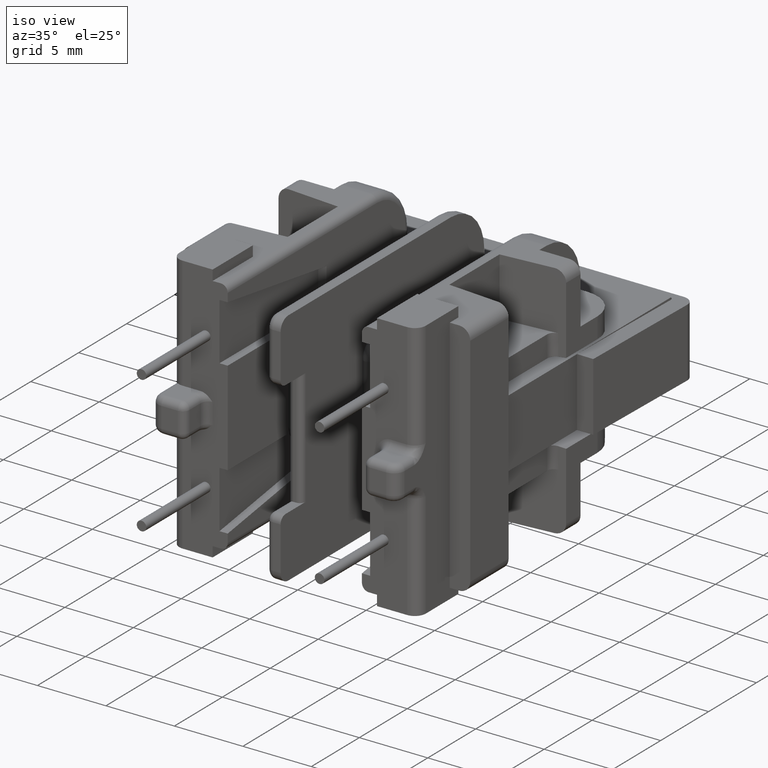
[diagram: clean part render]
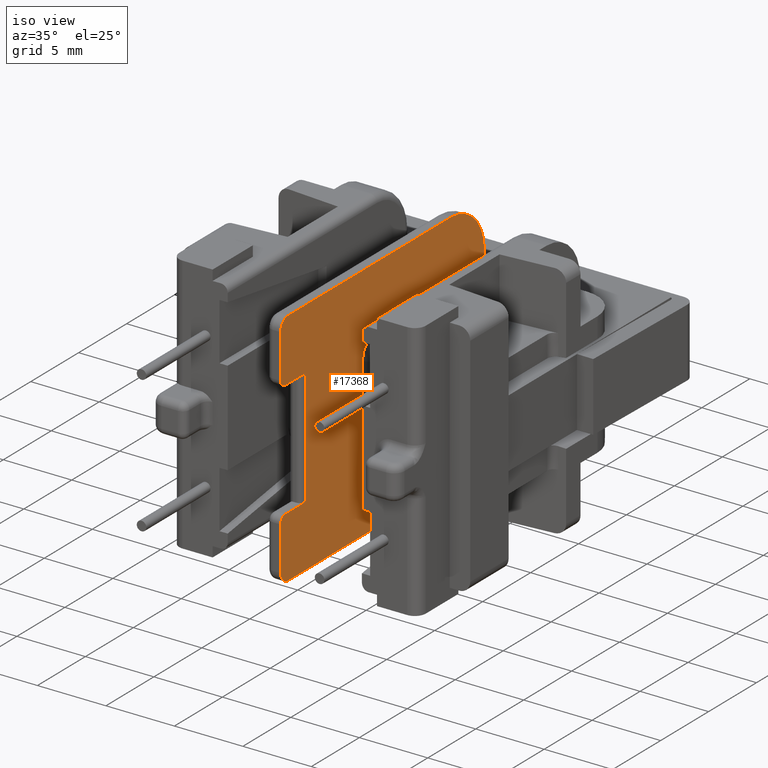
[diagram: same view with one face highlighted and labeled with its STEP entity id]
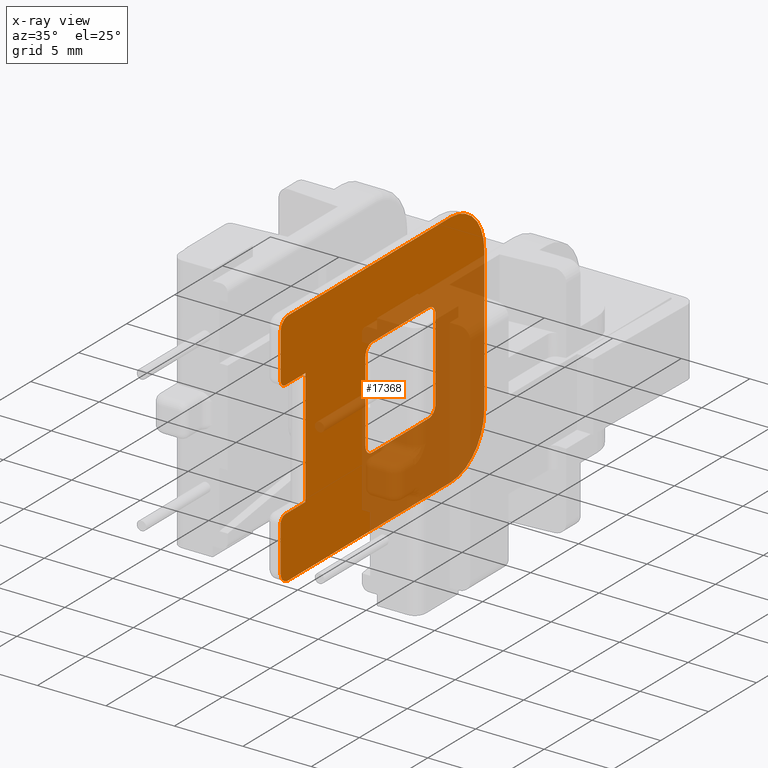
[diagram: x-ray of the same camera — body ghosted, the highlighted face saturated]
A machine part, iso view. The second image highlights one B-rep face of the part: STEP entity #17368.
The next image is the same camera in x-ray: the body ghosted, the highlighted face saturated — about 42% of this face is hidden behind the body in this view.
In plain terms, the highlighted planar face has unit normal (-1, -0, 0).
Its self-contained STEP definition (entity closure, byte-faithful):
#122 = AXIS2_PLACEMENT_3D ( 'NONE', #20296, #19104, #18491 ) ;
#171 = CARTESIAN_POINT ( 'NONE',  ( 0.5000000000000031086, -12.50000000000000000, 8.750000000000000000 ) ) ;
#184 = LINE ( 'NONE', #21788, #19378 ) ;
#272 = ORIENTED_EDGE ( 'NONE', *, *, #12640, .T. ) ;
#327 = AXIS2_PLACEMENT_3D ( 'NONE', #7729, #15359, #16993 ) ;
#409 = CIRCLE ( 'NONE', #10129, 0.7000000000000000666 ) ;
#552 = CARTESIAN_POINT ( 'NONE',  ( 0.5000000000000006661, 8.750000000000000000, -5.250000000000000888 ) ) ;
#621 = AXIS2_PLACEMENT_3D ( 'NONE', #12297, #3234, #19556 ) ;
#696 = EDGE_CURVE ( 'NONE', #22069, #9322, #409, .T. ) ;
#975 = FACE_BOUND ( 'NONE', #6990, .T. ) ;
#1259 = DIRECTION ( 'NONE',  ( 2.168404344971006896E-16, -1.000000000000000000, 0.0000000000000000000 ) ) ;
#1398 = VERTEX_POINT ( 'NONE', #2088 ) ;
#1412 = CARTESIAN_POINT ( 'NONE',  ( 0.5000000000000031086, -12.00000000000000000, -4.750000000000007994 ) ) ;
#1442 = DIRECTION ( 'NONE',  ( 1.548860246407863336E-16, -1.000000000000000000, 0.0000000000000000000 ) ) ;
#1696 = CARTESIAN_POINT ( 'NONE',  ( 0.5000000000000006661, 8.750000000000000000, 8.750000000000000000 ) ) ;
#1922 = CIRCLE ( 'NONE', #122, 0.8000000000000003775 ) ;
#2041 = EDGE_CURVE ( 'NONE', #5717, #20792, #9850, .T. ) ;
#2088 = CARTESIAN_POINT ( 'NONE',  ( 0.5000000000000028866, -9.899999999999998579, -4.250000000000007105 ) ) ;
#2122 = VERTEX_POINT ( 'NONE', #8492 ) ;
#2289 = VERTEX_POINT ( 'NONE', #3399 ) ;
#2333 = CARTESIAN_POINT ( 'NONE',  ( 0.5000000000000031086, -12.50000000000000000, 4.750000000000000000 ) ) ;
#2521 = EDGE_CURVE ( 'NONE', #16849, #20178, #6117, .T. ) ;
#2852 = CIRCLE ( 'NONE', #5734, 0.7000000000000000666 ) ;
#2858 = EDGE_CURVE ( 'NONE', #2122, #22069, #4148, .T. ) ;
#3038 = VERTEX_POINT ( 'NONE', #2333 ) ;
#3044 = CIRCLE ( 'NONE', #19329, 0.7000000000000000666 ) ;
#3210 = EDGE_CURVE ( 'NONE', #4669, #6218, #184, .T. ) ;
#3234 = DIRECTION ( 'NONE',  ( 1.000000000000000000, 1.243723190382374134E-16, -0.0000000000000000000 ) ) ;
#3326 = CARTESIAN_POINT ( 'NONE',  ( 0.5000000000000013323, 3.649999999999999911, 2.949999999999999734 ) ) ;
#3399 = CARTESIAN_POINT ( 'NONE',  ( 0.5000000000000032196, -12.00000000000000178, -4.250000000000007105 ) ) ;
#3431 = VERTEX_POINT ( 'NONE', #552 ) ;
#3938 = CIRCLE ( 'NONE', #12439, 3.500000000000000000 ) ;
#4003 = CIRCLE ( 'NONE', #18296, 3.500000000000000000 ) ;
#4052 = DIRECTION ( 'NONE',  ( 1.239088197126290817E-16, -1.000000000000000000, 0.0000000000000000000 ) ) ;
#4069 = CARTESIAN_POINT ( 'NONE',  ( 0.5000000000000014433, 2.950000000000000178, 3.649999999999999911 ) ) ;
#4148 = LINE ( 'NONE', #12591, #9768 ) ;
#4473 = DIRECTION ( 'NONE',  ( 1.000000000000000000, 1.243723190382374134E-16, -0.0000000000000000000 ) ) ;
#4486 = DIRECTION ( 'NONE',  ( 1.548860246407863336E-16, -1.000000000000000000, 0.0000000000000000000 ) ) ;
#4561 = VERTEX_POINT ( 'NONE', #15917 ) ;
#4639 = CIRCLE ( 'NONE', #327, 0.8000000000000003775 ) ;
#4669 = VERTEX_POINT ( 'NONE', #17726 ) ;
#4815 = CIRCLE ( 'NONE', #621, 0.5000000000000004441 ) ;
#4921 = DIRECTION ( 'NONE',  ( 1.000000000000000000, 1.243723190382374134E-16, -0.0000000000000000000 ) ) ;
#5061 = VECTOR ( 'NONE', #20128, 1000.000000000000000 ) ;
#5551 = DIRECTION ( 'NONE',  ( -1.000000000000000000, -1.243723190382374134E-16, 0.0000000000000000000 ) ) ;
#5594 = ORIENTED_EDGE ( 'NONE', *, *, #696, .T. ) ;
#5717 = VERTEX_POINT ( 'NONE', #22403 ) ;
#5734 = AXIS2_PLACEMENT_3D ( 'NONE', #20006, #5551, #18275 ) ;
#6117 = LINE ( 'NONE', #15056, #17427 ) ;
#6171 = CARTESIAN_POINT ( 'NONE',  ( 0.5000000000000031086, -11.70000000000000284, -8.750000000000000000 ) ) ;
#6218 = VERTEX_POINT ( 'NONE', #8031 ) ;
#6314 = EDGE_CURVE ( 'NONE', #17490, #3431, #13211, .T. ) ;
#6627 = CARTESIAN_POINT ( 'NONE',  ( 0.5000000000000006661, 8.750000000000000000, 8.750000000000000000 ) ) ;
#6675 = CARTESIAN_POINT ( 'NONE',  ( 0.5000000000000031086, -12.50000000000000000, 8.750000000000000000 ) ) ;
#6721 = ORIENTED_EDGE ( 'NONE', *, *, #18015, .T. ) ;
#6940 = AXIS2_PLACEMENT_3D ( 'NONE', #6627, #12066, #8568 ) ;
#6953 = CARTESIAN_POINT ( 'NONE',  ( 0.5000000000000031086, -12.50000000000000000, 7.950000000000000178 ) ) ;
#6990 = EDGE_LOOP ( 'NONE', ( #21681, #22701, #13328, #15144, #16631, #21625, #14886, #5594 ) ) ;
#7034 = CARTESIAN_POINT ( 'NONE',  ( 0.5000000000000006661, 8.750000000000001776, -4.250000000000003553 ) ) ;
#7056 = CARTESIAN_POINT ( 'NONE',  ( 0.5000000000000021094, -2.949999999999999289, -3.650000000000005240 ) ) ;
#7095 = DIRECTION ( 'NONE',  ( -1.000000000000000000, -1.243723190382374134E-16, 0.0000000000000000000 ) ) ;
#7231 = DIRECTION ( 'NONE',  ( -1.243723190382374134E-16, 1.000000000000000000, 6.285229985423215521E-17 ) ) ;
#7399 = CARTESIAN_POINT ( 'NONE',  ( 0.5000000000000011102, 5.250000000000000888, -8.750000000000000000 ) ) ;
#7558 = EDGE_CURVE ( 'NONE', #6218, #1398, #19874, .T. ) ;
#7729 = CARTESIAN_POINT ( 'NONE',  ( 0.5000000000000031086, -11.70000000000000107, -7.949999999999998401 ) ) ;
#7762 = EDGE_CURVE ( 'NONE', #9322, #15862, #11663, .T. ) ;
#8031 = CARTESIAN_POINT ( 'NONE',  ( 0.5000000000000028866, -9.899999999999998579, 4.250000000000000888 ) ) ;
#8045 = EDGE_CURVE ( 'NONE', #17490, #20792, #4003, .T. ) ;
#8153 = AXIS2_PLACEMENT_3D ( 'NONE', #11920, #18960, #4486 ) ;
#8309 = EDGE_CURVE ( 'NONE', #8780, #2122, #2852, .T. ) ;
#8492 = CARTESIAN_POINT ( 'NONE',  ( 0.5000000000000022204, -3.649999999999999911, -2.950000000000004174 ) ) ;
#8568 = DIRECTION ( 'NONE',  ( 1.243723190382374134E-16, -1.000000000000000000, 0.0000000000000000000 ) ) ;
#8780 = VERTEX_POINT ( 'NONE', #7056 ) ;
#8820 = EDGE_CURVE ( 'NONE', #5717, #19792, #1922, .T. ) ;
#9055 = ORIENTED_EDGE ( 'NONE', *, *, #11751, .T. ) ;
#9075 = ORIENTED_EDGE ( 'NONE', *, *, #8820, .T. ) ;
#9220 = ORIENTED_EDGE ( 'NONE', *, *, #7558, .T. ) ;
#9322 = VERTEX_POINT ( 'NONE', #20684 ) ;
#9552 = EDGE_CURVE ( 'NONE', #16673, #4561, #3044, .T. ) ;
#9768 = VECTOR ( 'NONE', #14734, 1000.000000000000000 ) ;
#9850 = LINE ( 'NONE', #1696, #5061 ) ;
#9940 = DIRECTION ( 'NONE',  ( -2.538253901144793297E-32, 2.040851148208006519E-16, -1.000000000000000000 ) ) ;
#10088 = CARTESIAN_POINT ( 'NONE',  ( 0.5000000000000028866, -9.900000000000002132, 8.749999999999998224 ) ) ;
#10129 = AXIS2_PLACEMENT_3D ( 'NONE', #12015, #19449, #22907 ) ;
#10493 = CARTESIAN_POINT ( 'NONE',  ( 0.5000000000000031086, -12.50000000000000000, -4.750000000000007994 ) ) ;
#10790 = VECTOR ( 'NONE', #14853, 1000.000000000000000 ) ;
#10849 = EDGE_CURVE ( 'NONE', #3038, #4669, #4815, .T. ) ;
#11060 = EDGE_CURVE ( 'NONE', #12530, #16673, #16171, .T. ) ;
#11104 = EDGE_CURVE ( 'NONE', #15862, #12530, #17245, .T. ) ;
#11464 = EDGE_CURVE ( 'NONE', #15222, #14113, #20647, .T. ) ;
#11513 = DIRECTION ( 'NONE',  ( 1.239088197126290817E-16, -1.000000000000000000, 0.0000000000000000000 ) ) ;
#11566 = EDGE_LOOP ( 'NONE', ( #9220, #13026, #14580, #19281, #6721, #14467, #9055, #22635, #18663, #12501, #9075, #272, #14666, #19369 ) ) ;
#11663 = LINE ( 'NONE', #14533, #17582 ) ;
#11731 = LINE ( 'NONE', #7034, #16790 ) ;
#11751 = EDGE_CURVE ( 'NONE', #20178, #3431, #3938, .T. ) ;
#11920 = CARTESIAN_POINT ( 'NONE',  ( 0.5000000000000014433, 2.950000000000000178, 2.949999999999999734 ) ) ;
#12015 = CARTESIAN_POINT ( 'NONE',  ( 0.5000000000000022204, -2.949999999999999734, 2.949999999999999289 ) ) ;
#12023 = CARTESIAN_POINT ( 'NONE',  ( 0.5000000000000021094, -2.949999999999999289, -3.650000000000005240 ) ) ;
#12066 = DIRECTION ( 'NONE',  ( -1.000000000000000000, -1.243723190382374134E-16, 0.0000000000000000000 ) ) ;
#12246 = CARTESIAN_POINT ( 'NONE',  ( 0.5000000000000014433, 2.950000000000000622, -2.949999999999999289 ) ) ;
#12297 = CARTESIAN_POINT ( 'NONE',  ( 0.5000000000000031086, -12.00000000000000000, 4.750000000000000000 ) ) ;
#12439 = AXIS2_PLACEMENT_3D ( 'NONE', #13289, #20232, #4052 ) ;
#12501 = ORIENTED_EDGE ( 'NONE', *, *, #2041, .F. ) ;
#12530 = VERTEX_POINT ( 'NONE', #3326 ) ;
#12591 = CARTESIAN_POINT ( 'NONE',  ( 0.5000000000000022204, -3.649999999999999911, 2.949999999999999289 ) ) ;
#12640 = EDGE_CURVE ( 'NONE', #19792, #3038, #17821, .T. ) ;
#12794 = DIRECTION ( 'NONE',  ( -1.243723190382374134E-16, 1.000000000000000000, 1.804696336473943597E-16 ) ) ;
#13026 = ORIENTED_EDGE ( 'NONE', *, *, #17026, .T. ) ;
#13211 = LINE ( 'NONE', #19361, #23084 ) ;
#13289 = CARTESIAN_POINT ( 'NONE',  ( 0.5000000000000011102, 5.250000000000000888, -5.250000000000000888 ) ) ;
#13328 = ORIENTED_EDGE ( 'NONE', *, *, #11060, .T. ) ;
#13377 = FACE_OUTER_BOUND ( 'NONE', #11566, .T. ) ;
#13485 = CARTESIAN_POINT ( 'NONE',  ( 0.5000000000000011102, 5.250000000000000888, 5.250000000000000888 ) ) ;
#14113 = VERTEX_POINT ( 'NONE', #20406 ) ;
#14263 = LINE ( 'NONE', #12023, #14287 ) ;
#14287 = VECTOR ( 'NONE', #22847, 1000.000000000000000 ) ;
#14467 = ORIENTED_EDGE ( 'NONE', *, *, #2521, .T. ) ;
#14533 = CARTESIAN_POINT ( 'NONE',  ( 0.5000000000000014433, 2.950000000000000178, 3.649999999999999911 ) ) ;
#14580 = ORIENTED_EDGE ( 'NONE', *, *, #17650, .T. ) ;
#14602 = DIRECTION ( 'NONE',  ( -0.0000000000000000000, -0.0000000000000000000, -1.000000000000000000 ) ) ;
#14666 = ORIENTED_EDGE ( 'NONE', *, *, #10849, .T. ) ;
#14734 = DIRECTION ( 'NONE',  ( 7.817086289757519673E-33, -6.285229985423211824E-17, 1.000000000000000000 ) ) ;
#14853 = DIRECTION ( 'NONE',  ( -1.563417257951505029E-32, 1.257045997084643104E-16, -1.000000000000000000 ) ) ;
#14886 = ORIENTED_EDGE ( 'NONE', *, *, #2858, .T. ) ;
#15056 = CARTESIAN_POINT ( 'NONE',  ( 0.5000000000000006661, 8.750000000000000000, -8.750000000000000000 ) ) ;
#15076 = VECTOR ( 'NONE', #9940, 1000.000000000000000 ) ;
#15144 = ORIENTED_EDGE ( 'NONE', *, *, #9552, .T. ) ;
#15222 = VERTEX_POINT ( 'NONE', #10493 ) ;
#15359 = DIRECTION ( 'NONE',  ( 1.000000000000000000, 1.243723190382374134E-16, -0.0000000000000000000 ) ) ;
#15862 = VERTEX_POINT ( 'NONE', #4069 ) ;
#15917 = CARTESIAN_POINT ( 'NONE',  ( 0.5000000000000014433, 2.950000000000001066, -3.649999999999999467 ) ) ;
#16074 = DIRECTION ( 'NONE',  ( -0.0000000000000000000, -0.0000000000000000000, -1.000000000000000000 ) ) ;
#16171 = LINE ( 'NONE', #18478, #10790 ) ;
#16210 = DIRECTION ( 'NONE',  ( -0.0000000000000000000, -0.0000000000000000000, -1.000000000000000000 ) ) ;
#16631 = ORIENTED_EDGE ( 'NONE', *, *, #18209, .T. ) ;
#16673 = VERTEX_POINT ( 'NONE', #21733 ) ;
#16790 = VECTOR ( 'NONE', #19955, 1000.000000000000000 ) ;
#16849 = VERTEX_POINT ( 'NONE', #6171 ) ;
#16993 = DIRECTION ( 'NONE',  ( 1.355252715606879803E-16, -1.000000000000000000, 0.0000000000000000000 ) ) ;
#17026 = EDGE_CURVE ( 'NONE', #1398, #2289, #11731, .T. ) ;
#17234 = VECTOR ( 'NONE', #14602, 1000.000000000000000 ) ;
#17245 = CIRCLE ( 'NONE', #8153, 0.7000000000000000666 ) ;
#17368 = ADVANCED_FACE ( 'NONE', ( #975, #13377 ), #22605, .F. ) ;
#17427 = VECTOR ( 'NONE', #18528, 1000.000000000000000 ) ;
#17490 = VERTEX_POINT ( 'NONE', #19502 ) ;
#17582 = VECTOR ( 'NONE', #7231, 1000.000000000000000 ) ;
#17650 = EDGE_CURVE ( 'NONE', #2289, #15222, #19573, .T. ) ;
#17726 = CARTESIAN_POINT ( 'NONE',  ( 0.5000000000000032196, -12.00000000000000000, 4.250000000000000888 ) ) ;
#17821 = LINE ( 'NONE', #171, #17234 ) ;
#18015 = EDGE_CURVE ( 'NONE', #14113, #16849, #4639, .T. ) ;
#18209 = EDGE_CURVE ( 'NONE', #4561, #8780, #14263, .T. ) ;
#18275 = DIRECTION ( 'NONE',  ( 1.548860246407863336E-16, -1.000000000000000000, 0.0000000000000000000 ) ) ;
#18296 = AXIS2_PLACEMENT_3D ( 'NONE', #13485, #4473, #11513 ) ;
#18478 = CARTESIAN_POINT ( 'NONE',  ( 0.5000000000000013323, 3.650000000000000799, -2.949999999999999289 ) ) ;
#18491 = DIRECTION ( 'NONE',  ( 1.355252715606879803E-16, -1.000000000000000000, 0.0000000000000000000 ) ) ;
#18528 = DIRECTION ( 'NONE',  ( -1.243723190382374134E-16, 1.000000000000000000, -0.0000000000000000000 ) ) ;
#18663 = ORIENTED_EDGE ( 'NONE', *, *, #8045, .T. ) ;
#18696 = CARTESIAN_POINT ( 'NONE',  ( 0.5000000000000011102, 5.250000000000000888, 8.750000000000000000 ) ) ;
#18960 = DIRECTION ( 'NONE',  ( -1.000000000000000000, -1.243723190382374134E-16, 0.0000000000000000000 ) ) ;
#19104 = DIRECTION ( 'NONE',  ( 1.000000000000000000, 1.243723190382374134E-16, -0.0000000000000000000 ) ) ;
#19281 = ORIENTED_EDGE ( 'NONE', *, *, #11464, .T. ) ;
#19329 = AXIS2_PLACEMENT_3D ( 'NONE', #12246, #7095, #1442 ) ;
#19361 = CARTESIAN_POINT ( 'NONE',  ( 0.5000000000000006661, 8.750000000000000000, 8.750000000000000000 ) ) ;
#19369 = ORIENTED_EDGE ( 'NONE', *, *, #3210, .T. ) ;
#19378 = VECTOR ( 'NONE', #12794, 1000.000000000000000 ) ;
#19449 = DIRECTION ( 'NONE',  ( -1.000000000000000000, -1.243723190382374134E-16, 0.0000000000000000000 ) ) ;
#19502 = CARTESIAN_POINT ( 'NONE',  ( 0.5000000000000006661, 8.750000000000000000, 5.250000000000000888 ) ) ;
#19556 = DIRECTION ( 'NONE',  ( 2.168404344971006896E-16, -1.000000000000000000, 0.0000000000000000000 ) ) ;
#19573 = CIRCLE ( 'NONE', #23127, 0.5000000000000004441 ) ;
#19792 = VERTEX_POINT ( 'NONE', #6953 ) ;
#19874 = LINE ( 'NONE', #10088, #15076 ) ;
#19955 = DIRECTION ( 'NONE',  ( 1.243723190382374134E-16, -1.000000000000000000, -1.804696336473943597E-16 ) ) ;
#20006 = CARTESIAN_POINT ( 'NONE',  ( 0.5000000000000022204, -2.949999999999999734, -2.950000000000004174 ) ) ;
#20128 = DIRECTION ( 'NONE',  ( -1.243723190382374134E-16, 1.000000000000000000, -0.0000000000000000000 ) ) ;
#20178 = VERTEX_POINT ( 'NONE', #7399 ) ;
#20232 = DIRECTION ( 'NONE',  ( 1.000000000000000000, 1.243723190382374134E-16, -0.0000000000000000000 ) ) ;
#20296 = CARTESIAN_POINT ( 'NONE',  ( 0.5000000000000031086, -11.70000000000000107, 7.950000000000000178 ) ) ;
#20406 = CARTESIAN_POINT ( 'NONE',  ( 0.5000000000000031086, -12.50000000000000000, -7.949999999999998401 ) ) ;
#20621 = VECTOR ( 'NONE', #16074, 1000.000000000000000 ) ;
#20647 = LINE ( 'NONE', #6675, #20621 ) ;
#20684 = CARTESIAN_POINT ( 'NONE',  ( 0.5000000000000021094, -2.949999999999999289, 3.649999999999999467 ) ) ;
#20792 = VERTEX_POINT ( 'NONE', #18696 ) ;
#21625 = ORIENTED_EDGE ( 'NONE', *, *, #8309, .T. ) ;
#21681 = ORIENTED_EDGE ( 'NONE', *, *, #7762, .T. ) ;
#21733 = CARTESIAN_POINT ( 'NONE',  ( 0.5000000000000013323, 3.650000000000000799, -2.949999999999999289 ) ) ;
#21788 = CARTESIAN_POINT ( 'NONE',  ( 0.5000000000000006661, 8.750000000000000000, 4.250000000000004441 ) ) ;
#22069 = VERTEX_POINT ( 'NONE', #23268 ) ;
#22403 = CARTESIAN_POINT ( 'NONE',  ( 0.5000000000000031086, -11.70000000000000284, 8.750000000000000000 ) ) ;
#22605 = PLANE ( 'NONE',  #6940 ) ;
#22635 = ORIENTED_EDGE ( 'NONE', *, *, #6314, .F. ) ;
#22701 = ORIENTED_EDGE ( 'NONE', *, *, #11104, .T. ) ;
#22847 = DIRECTION ( 'NONE',  ( 1.243723190382374134E-16, -1.000000000000000000, -6.913752983965536950E-16 ) ) ;
#22907 = DIRECTION ( 'NONE',  ( 1.548860246407863336E-16, -1.000000000000000000, 0.0000000000000000000 ) ) ;
#23084 = VECTOR ( 'NONE', #16210, 1000.000000000000000 ) ;
#23127 = AXIS2_PLACEMENT_3D ( 'NONE', #1412, #4921, #1259 ) ;
#23268 = CARTESIAN_POINT ( 'NONE',  ( 0.5000000000000022204, -3.649999999999999911, 2.949999999999999289 ) ) ;